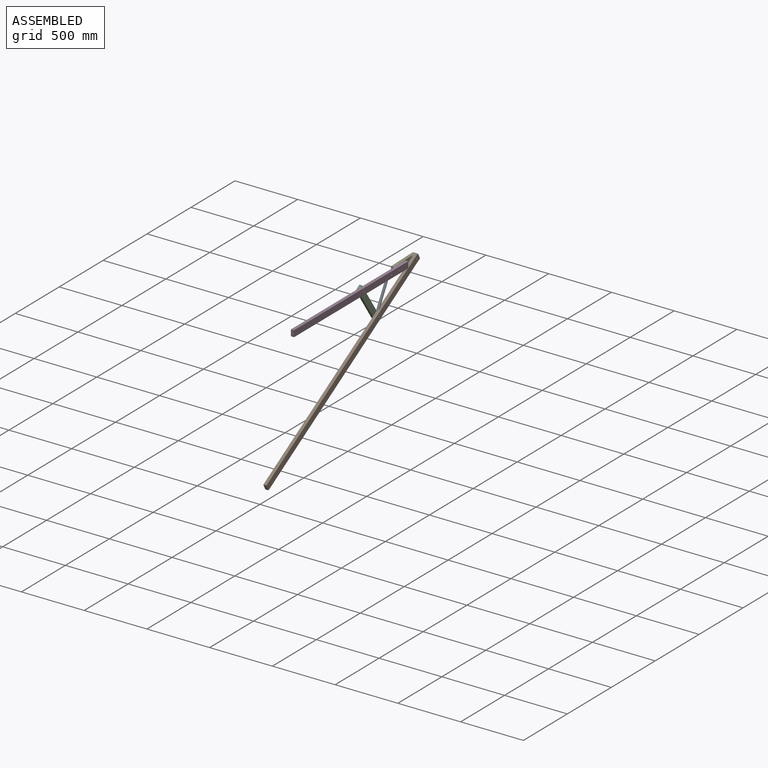
[diagram: assembled view]
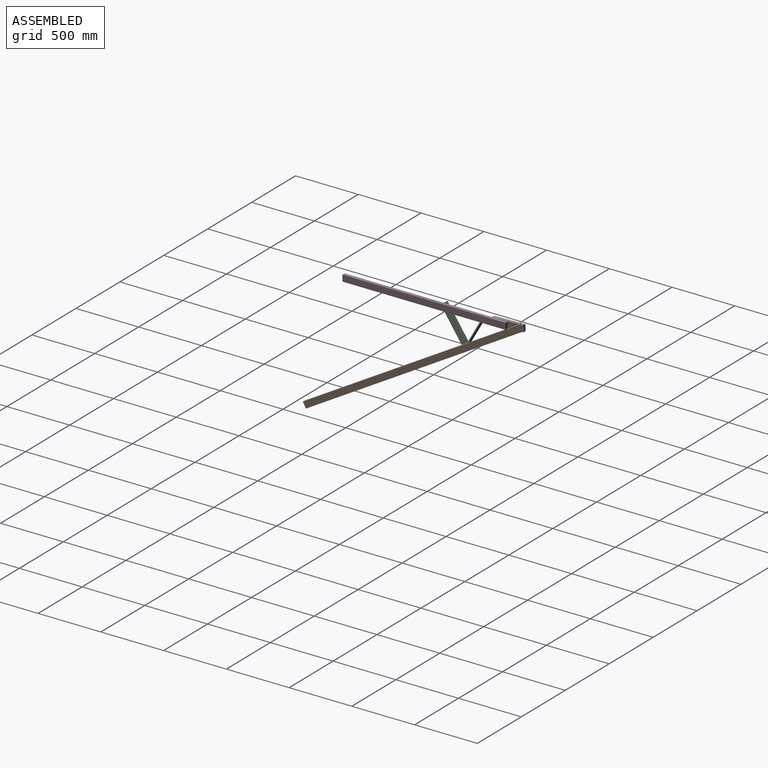
[diagram: assembled view, second angle]
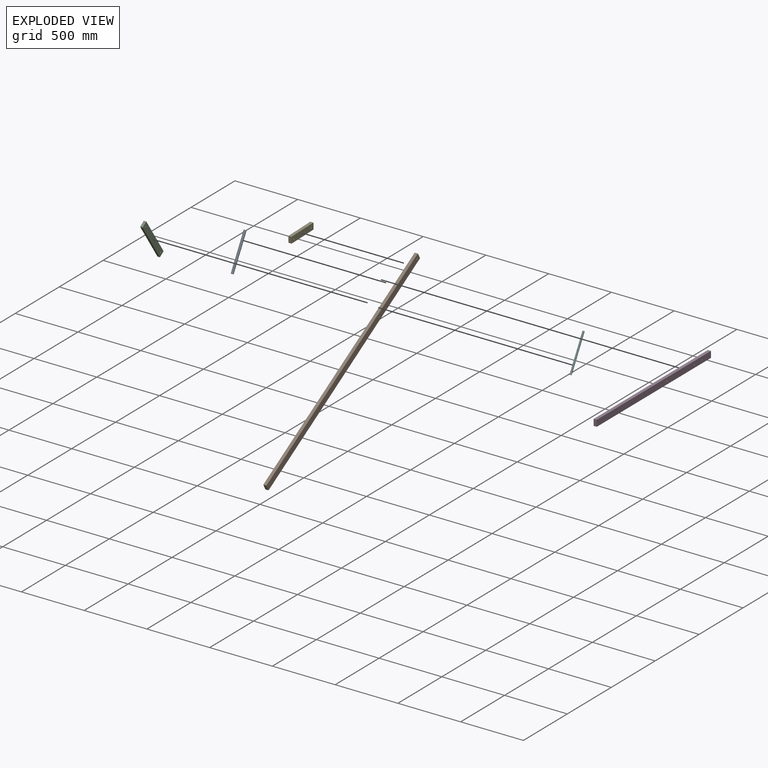
[diagram: exploded view]
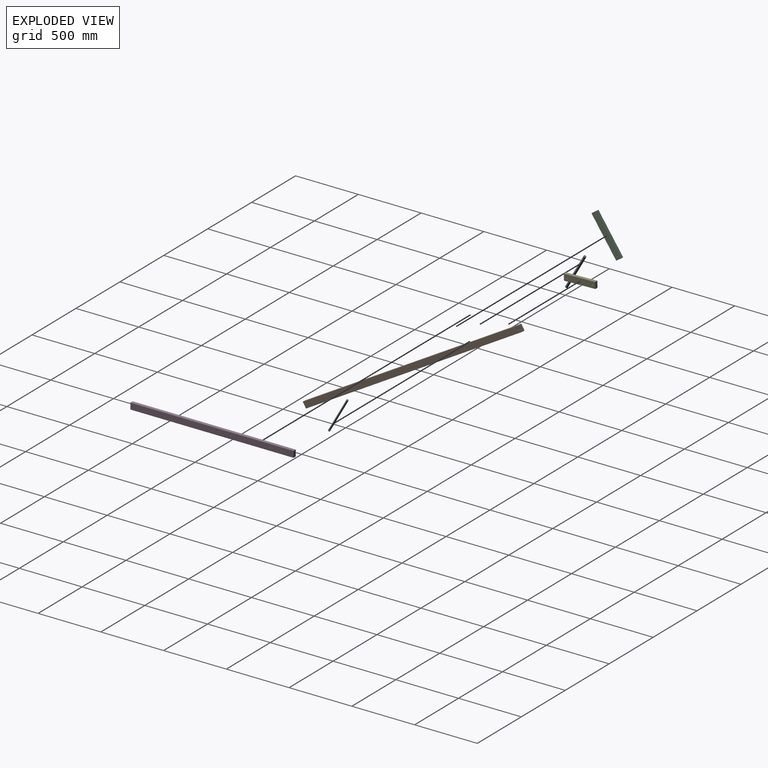
[diagram: exploded view, second angle]
ASSEMBLY  parts=6 mates=7
PART A: 7 faces, bbox 20x300x20 mm
  f0: cylinder r=10mm len=300mm, axis (0,1,0), area 18687mm2, adj f2,f3,f5,f6
  f1: cylinder r=7.5mm len=297.5mm, axis (0,1,0), area 13851.5mm2, adj f3,f4,f5,f6
  f2: plane 20x20mm, normal (0,-1,0), area 314.2mm2, adj f0
  f3: plane 20x20mm, normal (0,1,0), area 137.4mm2, adj f0,f1
  f4: plane 15x15mm, normal (0,1,0), area 176.7mm2, adj f1
  f5: cylinder r=5mm len=10mm, axis (0,0,-1), area 86.8mm2, adj f0,f1
  f6: cylinder r=5mm len=10mm, axis (0,0,-1), area 86.7mm2, adj f0,f1
PART B: 8 faces, bbox 25x2000x50 mm
  f0: plane 2000x25mm, normal (0,0,1), area 50000mm2, adj f1,f3,f4,f5
  f1: plane 2000x50mm, normal (-1,0,0), area 99842.9mm2, adj f0,f2,f4,f5,f6,f7
  f2: plane 2000x25mm, normal (0,0,-1), area 50000mm2, adj f1,f3,f4,f5
  f3: plane 2000x50mm, normal (1,0,0), area 99842.9mm2, adj f0,f2,f4,f5,f6,f7
  f4: plane 50x25mm, normal (0,-1,0), area 1250mm2, adj f0,f1,f2,f3
  f5: plane 50x25mm, normal (0,1,0), area 1250mm2, adj f0,f1,f2,f3
  f6: cylinder r=5mm len=25mm, axis (1,0,0), area 785.4mm2, adj f1,f3
  f7: cylinder r=5mm len=25mm, axis (1,0,0), area 785.4mm2, adj f1,f3
PART C: 8 faces, bbox 50x350x20 mm
  f0: plane 350x50mm, normal (0,0,1), area 17342.9mm2, adj f1,f3,f4,f5,f6,f7
  f1: plane 350x20mm, normal (-1,0,0), area 7000mm2, adj f0,f2,f4,f5
  f2: plane 350x50mm, normal (0,0,-1), area 17342.9mm2, adj f1,f3,f4,f5,f6,f7
  f3: plane 350x20mm, normal (1,0,0), area 7000mm2, adj f0,f2,f4,f5
  f4: plane 50x20mm, normal (0,-1,0), area 1000mm2, adj f0,f1,f2,f3
  f5: plane 50x20mm, normal (0,1,0), area 1000mm2, adj f0,f1,f2,f3
  f6: cylinder r=5mm len=20mm, axis (0,0,1), area 628.3mm2, adj f0,f2
  f7: cylinder r=5mm len=20mm, axis (0,0,1), area 628.3mm2, adj f0,f2
PART D: 9 faces, bbox 25x1300x50 mm
  f0: plane 1300x25mm, normal (0,0,1), area 32500mm2, adj f1,f3,f4,f5
  f1: plane 1300x50mm, normal (-1,0,0), area 64764.4mm2, adj f0,f2,f4,f5,f6,f7,f8
  f2: plane 1300x25mm, normal (0,0,-1), area 32500mm2, adj f1,f3,f4,f5
  f3: plane 1300x50mm, normal (1,0,0), area 64764.4mm2, adj f0,f2,f4,f5,f6,f7,f8
  f4: plane 50x25mm, normal (0,-1,0), area 1250mm2, adj f0,f1,f2,f3
  f5: plane 50x25mm, normal (0,1,0), area 1250mm2, adj f0,f1,f2,f3
  f6: cylinder r=5mm len=25mm, axis (-1,0,0), area 785.4mm2, adj f1,f3
  f7: cylinder r=5mm len=25mm, axis (-1,0,0), area 785.4mm2, adj f1,f3
  f8: cylinder r=5mm len=25mm, axis (-1,0,0), area 785.4mm2, adj f1,f3
PART E: 8 faces, bbox 25x250x50 mm
  f0: plane 250x25mm, normal (0,0,1), area 6250mm2, adj f1,f3,f4,f5
  f1: plane 250x50mm, normal (-1,0,0), area 12342.9mm2, adj f0,f2,f4,f5,f6,f7
  f2: plane 250x25mm, normal (0,0,-1), area 6250mm2, adj f1,f3,f4,f5
  f3: plane 250x50mm, normal (1,0,0), area 12342.9mm2, adj f0,f2,f4,f5,f6,f7
  f4: plane 50x25mm, normal (0,-1,0), area 1250mm2, adj f0,f1,f2,f3
  f5: plane 50x25mm, normal (0,1,0), area 1250mm2, adj f0,f1,f2,f3
  f6: cylinder r=5mm len=25mm, axis (1,0,0), area 785.4mm2, adj f1,f3
  f7: cylinder r=5mm len=25mm, axis (1,0,0), area 785.4mm2, adj f1,f3
PART F: 4 faces, bbox 15x300x15 mm
  f0: cylinder r=7.5mm len=300mm, axis (0,1,0), area 13969.5mm2, adj f1,f2,f3
  f1: plane 15x15mm, normal (0,-1,0), area 176.7mm2, adj f0
  f2: plane 15x15mm, normal (0,1,0), area 176.7mm2, adj f0
  f3: cylinder r=5mm len=15mm, axis (1,0,0), area 413.4mm2, adj f0
PLACE A rot(axis=(-0.65,0.38,-0.65),138.4deg) t=(-64.97,486.66,15.66)mm
PLACE B rot(axis=(0,0.26,-0.96),180deg) t=(-52.47,5.32,-351.34)mm
PLACE C rot(axis=(0.66,0.35,0.66),141.4deg) t=(-74.97,330.35,13.36)mm
PLACE D t=(-52.47,95.91,137.33)mm fixed
PLACE E rot(axis=(1,0,0),1.6deg) t=(-77.47,745.87,140.06)mm
PLACE F rot(axis=(0,0.86,0.5),180deg) t=(-64.97,484.05,11.06)mm
MATE revolute B.f7 <-> E.f6  axis (1,0,0) through (-64.97,845.83,142.78)mm
MATE slider F.f0 <-> A.f0  axis (0,-0.49,-0.87) through (-64.97,558.24,141.43)mm
MATE revolute C.f6 <-> B.f6  axis (1,0,0) through (-64.97,414.8,-110.61)mm
MATE revolute A.f5 <-> D.f6  axis (1,0,0) through (-64.97,555.91,137.33)mm
MATE revolute D.f8 <-> E.f7  axis (-1,0,0) through (-64.97,645.91,137.33)mm
MATE revolute C.f7 <-> D.f7  axis (1,0,0) through (-64.97,245.91,137.33)mm
MATE revolute F.f3 <-> C.f6  axis (-1,0,0) through (-64.97,414.8,-110.61)mm
